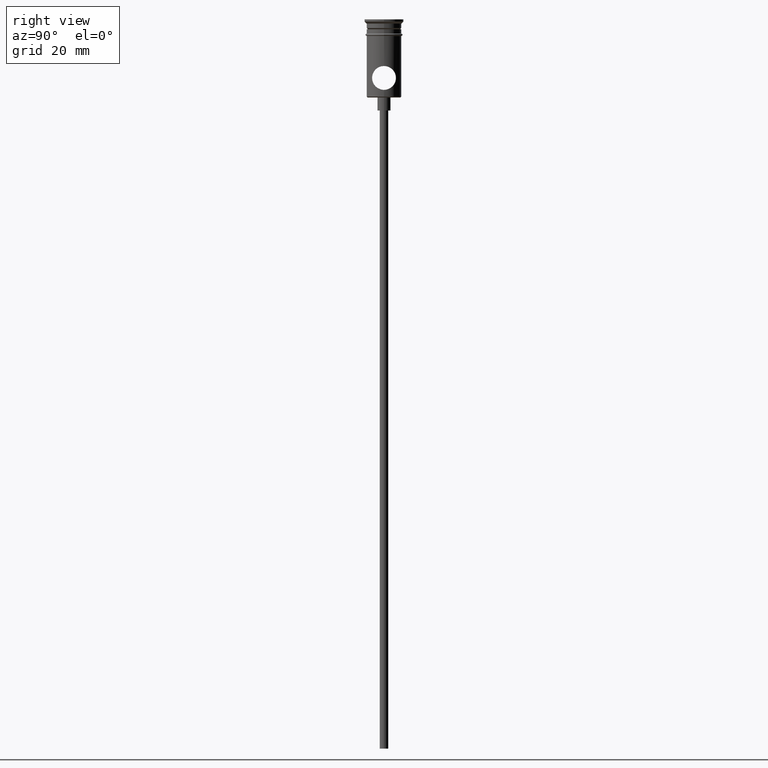
[diagram: clean part render]
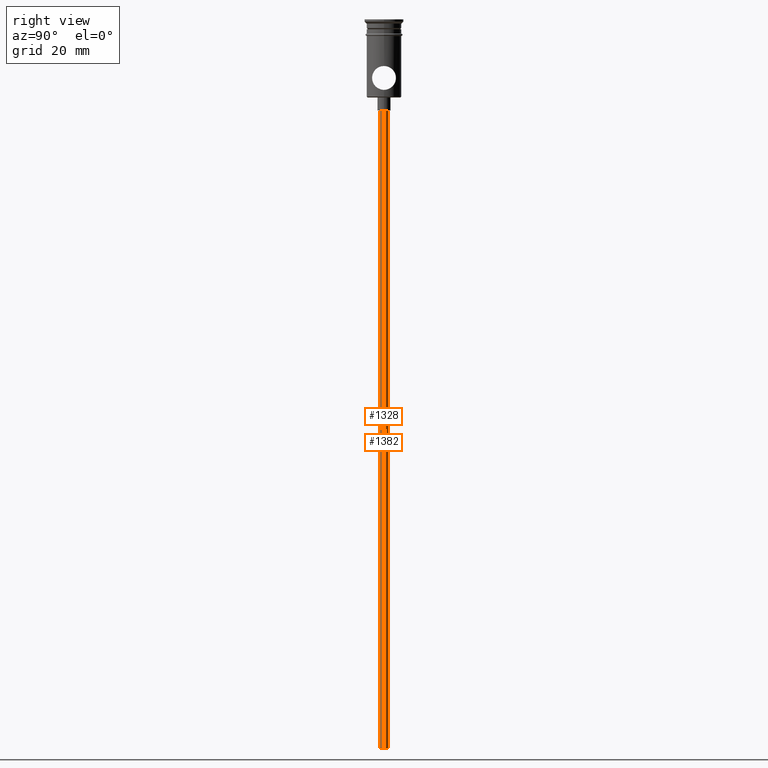
[diagram: same view with one multi-face feature highlighted, each face labeled with its STEP entity id]
A machine part, right view. The highlighted faces form ONE feature: a constant-radius fillet chain: 2 tangent blend faces with common blend radius 1 mm. The faces share edges in the B-rep.
Their STEP definitions:
[1] entity #1382 (Cylinder):
#20 = EDGE_CURVE ( 'NONE', #595, #308, #645, .T. ) ;
#32 = DIRECTION ( 'NONE',  ( -0.000000000000000000, -0.000000000000000000, 1.000000000000000000 ) ) ;
#47 = DIRECTION ( 'NONE',  ( 1.000000000000000000, 0.000000000000000000, 0.000000000000000000 ) ) ;
#123 = DIRECTION ( 'NONE',  ( -1.000000000000000000, 0.000000000000000000, 0.000000000000000000 ) ) ;
#134 = VECTOR ( 'NONE', #845, 1000.000000000000000 ) ;
#137 = VECTOR ( 'NONE', #32, 1000.000000000000000 ) ;
#143 = EDGE_CURVE ( 'NONE', #284, #595, #1140, .T. ) ;
#145 = FACE_OUTER_BOUND ( 'NONE', #480, .T. ) ;
#180 = DIRECTION ( 'NONE',  ( 0.000000000000000000, 0.000000000000000000, -1.000000000000000000 ) ) ;
#201 = AXIS2_PLACEMENT_3D ( 'NONE', #451, #1404, #123 ) ;
#227 = EDGE_CURVE ( 'NONE', #811, #308, #667, .T. ) ;
#268 = CARTESIAN_POINT ( 'NONE',  ( -0.9999999999999997780, 1.224646799147352961E-16, -20.99999999999999645 ) ) ;
#284 = VERTEX_POINT ( 'NONE', #833 ) ;
#303 = CARTESIAN_POINT ( 'NONE',  ( 0.9999999999999997780, 0.000000000000000000, -167.9999999999999716 ) ) ;
#308 = VERTEX_POINT ( 'NONE', #1305 ) ;
#434 = EDGE_CURVE ( 'NONE', #284, #811, #521, .T. ) ;
#451 = CARTESIAN_POINT ( 'NONE',  ( 0.000000000000000000, 0.000000000000000000, -20.99999999999999645 ) ) ;
#480 = EDGE_LOOP ( 'NONE', ( #1295, #1359, #1158, #698 ) ) ;
#521 = CIRCLE ( 'NONE', #707, 0.9999999999999997780 ) ;
#560 = CARTESIAN_POINT ( 'NONE',  ( 0.000000000000000000, 0.000000000000000000, -167.9999999999999716 ) ) ;
#595 = VERTEX_POINT ( 'NONE', #268 ) ;
#624 = DIRECTION ( 'NONE',  ( -1.000000000000000000, 0.000000000000000000, 0.000000000000000000 ) ) ;
#645 = CIRCLE ( 'NONE', #201, 0.9999999999999997780 ) ;
#667 = LINE ( 'NONE', #303, #134 ) ;
#698 = ORIENTED_EDGE ( 'NONE', *, *, #227, .F. ) ;
#707 = AXIS2_PLACEMENT_3D ( 'NONE', #1290, #180, #624 ) ;
#811 = VERTEX_POINT ( 'NONE', #892 ) ;
#833 = CARTESIAN_POINT ( 'NONE',  ( -0.9999999999999997780, 1.224646799147352961E-16, -167.9999999999999716 ) ) ;
#845 = DIRECTION ( 'NONE',  ( -0.000000000000000000, -0.000000000000000000, 1.000000000000000000 ) ) ;
#892 = CARTESIAN_POINT ( 'NONE',  ( 0.9999999999999997780, 0.000000000000000000, -167.9999999999999716 ) ) ;
#894 = CARTESIAN_POINT ( 'NONE',  ( -0.9999999999999997780, 1.224646799147352961E-16, -167.9999999999999716 ) ) ;
#1024 = DIRECTION ( 'NONE',  ( -0.000000000000000000, -0.000000000000000000, 1.000000000000000000 ) ) ;
#1028 = AXIS2_PLACEMENT_3D ( 'NONE', #560, #1024, #47 ) ;
#1140 = LINE ( 'NONE', #894, #137 ) ;
#1158 = ORIENTED_EDGE ( 'NONE', *, *, #20, .T. ) ;
#1216 = CYLINDRICAL_SURFACE ( 'NONE', #1028, 0.9999999999999997780 ) ;
#1290 = CARTESIAN_POINT ( 'NONE',  ( 0.000000000000000000, 0.000000000000000000, -167.9999999999999716 ) ) ;
#1295 = ORIENTED_EDGE ( 'NONE', *, *, #434, .F. ) ;
#1305 = CARTESIAN_POINT ( 'NONE',  ( 0.9999999999999997780, 0.000000000000000000, -20.99999999999999645 ) ) ;
#1359 = ORIENTED_EDGE ( 'NONE', *, *, #143, .T. ) ;
#1382 = ADVANCED_FACE ( 'NONE', ( #145 ), #1216, .T. ) ;
#1404 = DIRECTION ( 'NONE',  ( 0.000000000000000000, 0.000000000000000000, -1.000000000000000000 ) ) ;
[2] entity #1328 (Cylinder):
#31 = DIRECTION ( 'NONE',  ( -0.000000000000000000, -0.000000000000000000, 1.000000000000000000 ) ) ;
#32 = DIRECTION ( 'NONE',  ( -0.000000000000000000, -0.000000000000000000, 1.000000000000000000 ) ) ;
#71 = DIRECTION ( 'NONE',  ( 0.000000000000000000, 0.000000000000000000, -1.000000000000000000 ) ) ;
#86 = CIRCLE ( 'NONE', #478, 0.9999999999999997780 ) ;
#134 = VECTOR ( 'NONE', #845, 1000.000000000000000 ) ;
#137 = VECTOR ( 'NONE', #32, 1000.000000000000000 ) ;
#143 = EDGE_CURVE ( 'NONE', #284, #595, #1140, .T. ) ;
#153 = FACE_OUTER_BOUND ( 'NONE', #245, .T. ) ;
#212 = ORIENTED_EDGE ( 'NONE', *, *, #797, .F. ) ;
#227 = EDGE_CURVE ( 'NONE', #811, #308, #667, .T. ) ;
#245 = EDGE_LOOP ( 'NONE', ( #739, #212, #293, #798 ) ) ;
#256 = DIRECTION ( 'NONE',  ( -1.000000000000000000, 0.000000000000000000, 0.000000000000000000 ) ) ;
#268 = CARTESIAN_POINT ( 'NONE',  ( -0.9999999999999997780, 1.224646799147352961E-16, -20.99999999999999645 ) ) ;
#284 = VERTEX_POINT ( 'NONE', #833 ) ;
#293 = ORIENTED_EDGE ( 'NONE', *, *, #227, .T. ) ;
#303 = CARTESIAN_POINT ( 'NONE',  ( 0.9999999999999997780, 0.000000000000000000, -167.9999999999999716 ) ) ;
#308 = VERTEX_POINT ( 'NONE', #1305 ) ;
#436 = CIRCLE ( 'NONE', #1231, 0.9999999999999997780 ) ;
#441 = EDGE_CURVE ( 'NONE', #308, #595, #86, .T. ) ;
#468 = DIRECTION ( 'NONE',  ( 1.000000000000000000, 0.000000000000000000, 0.000000000000000000 ) ) ;
#478 = AXIS2_PLACEMENT_3D ( 'NONE', #1060, #71, #942 ) ;
#570 = CARTESIAN_POINT ( 'NONE',  ( 0.000000000000000000, 0.000000000000000000, -167.9999999999999716 ) ) ;
#595 = VERTEX_POINT ( 'NONE', #268 ) ;
#667 = LINE ( 'NONE', #303, #134 ) ;
#739 = ORIENTED_EDGE ( 'NONE', *, *, #143, .F. ) ;
#746 = AXIS2_PLACEMENT_3D ( 'NONE', #570, #31, #468 ) ;
#797 = EDGE_CURVE ( 'NONE', #811, #284, #436, .T. ) ;
#798 = ORIENTED_EDGE ( 'NONE', *, *, #441, .T. ) ;
#811 = VERTEX_POINT ( 'NONE', #892 ) ;
#833 = CARTESIAN_POINT ( 'NONE',  ( -0.9999999999999997780, 1.224646799147352961E-16, -167.9999999999999716 ) ) ;
#845 = DIRECTION ( 'NONE',  ( -0.000000000000000000, -0.000000000000000000, 1.000000000000000000 ) ) ;
#892 = CARTESIAN_POINT ( 'NONE',  ( 0.9999999999999997780, 0.000000000000000000, -167.9999999999999716 ) ) ;
#894 = CARTESIAN_POINT ( 'NONE',  ( -0.9999999999999997780, 1.224646799147352961E-16, -167.9999999999999716 ) ) ;
#913 = CARTESIAN_POINT ( 'NONE',  ( 0.000000000000000000, 0.000000000000000000, -167.9999999999999716 ) ) ;
#942 = DIRECTION ( 'NONE',  ( -1.000000000000000000, 0.000000000000000000, 0.000000000000000000 ) ) ;
#1060 = CARTESIAN_POINT ( 'NONE',  ( 0.000000000000000000, 0.000000000000000000, -20.99999999999999645 ) ) ;
#1140 = LINE ( 'NONE', #894, #137 ) ;
#1212 = CYLINDRICAL_SURFACE ( 'NONE', #746, 0.9999999999999997780 ) ;
#1231 = AXIS2_PLACEMENT_3D ( 'NONE', #913, #1352, #256 ) ;
#1305 = CARTESIAN_POINT ( 'NONE',  ( 0.9999999999999997780, 0.000000000000000000, -20.99999999999999645 ) ) ;
#1328 = ADVANCED_FACE ( 'NONE', ( #153 ), #1212, .T. ) ;
#1352 = DIRECTION ( 'NONE',  ( 0.000000000000000000, 0.000000000000000000, -1.000000000000000000 ) ) ;